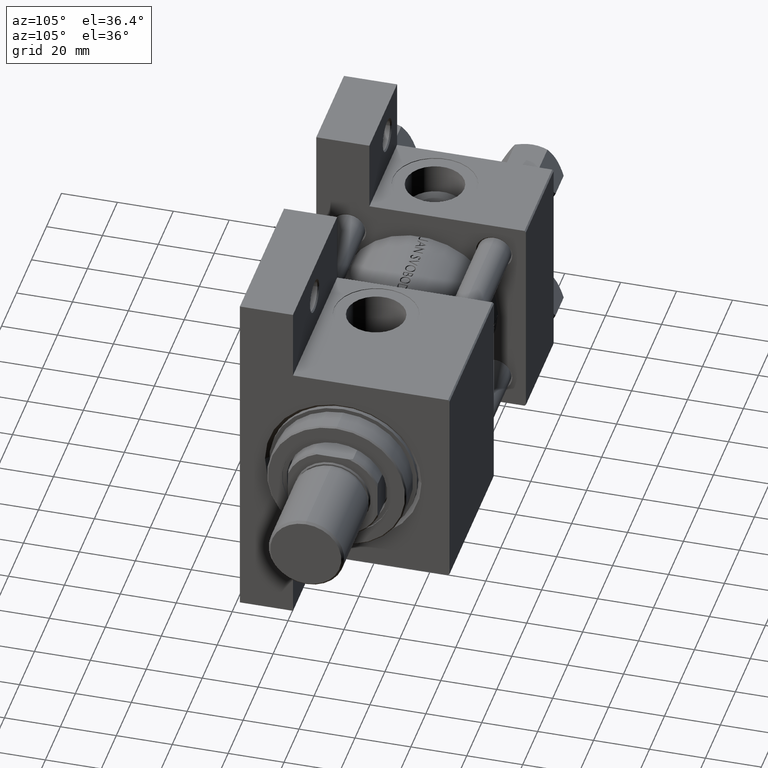
[diagram: clean part render]
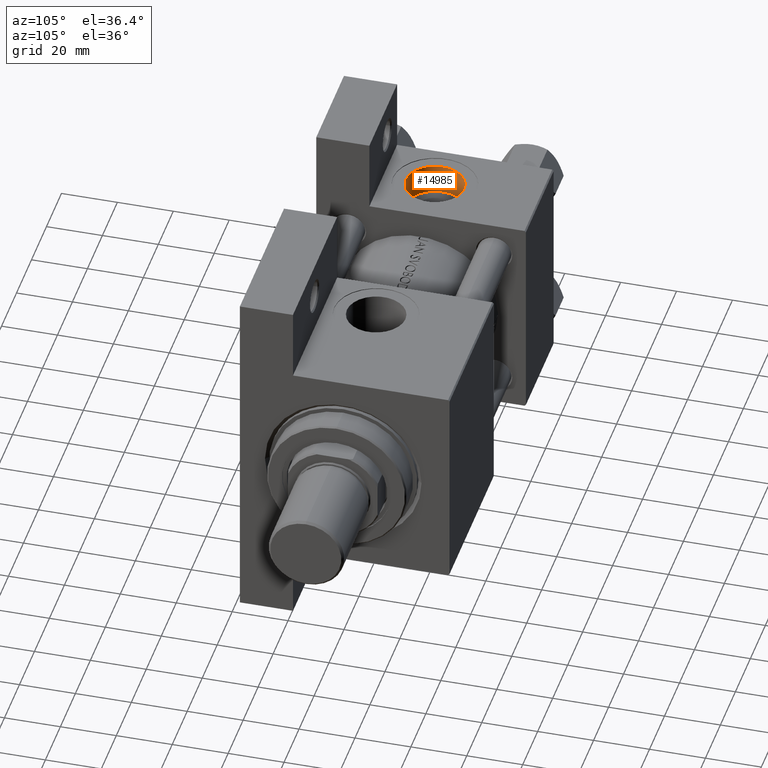
[diagram: same view with one face highlighted and labeled with its STEP entity id]
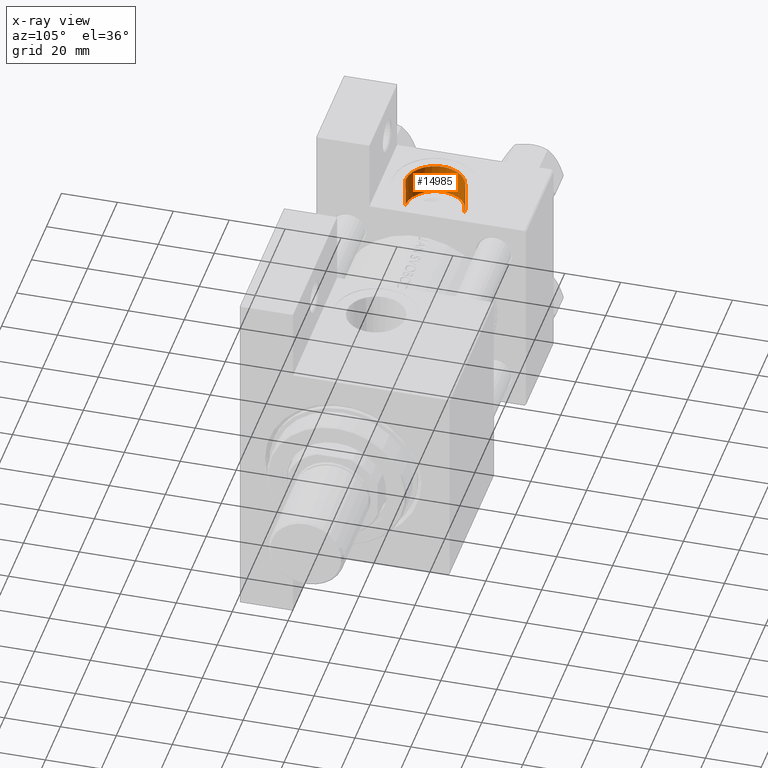
[diagram: x-ray of the same camera — body ghosted, the highlighted face saturated]
A machine part, auxiliary view. The second image highlights one B-rep face of the part: STEP entity #14985.
The next image is the same camera in x-ray: the body ghosted, the highlighted face saturated — about 0% of this face is hidden behind the body in this view.
In plain terms, the highlighted cylindrical surface (edge-blend (fillet) strip) has radius 10.48 mm, axis along (-0, -0, 1).
Its self-contained STEP definition (entity closure, byte-faithful):
#372 = CIRCLE ( 'NONE', #24974, 10.48000000000000043 ) ;
#1241 = AXIS2_PLACEMENT_3D ( 'NONE', #20356, #35498, #8932 ) ;
#1967 = ORIENTED_EDGE ( 'NONE', *, *, #12566, .F. ) ;
#3896 = LINE ( 'NONE', #41162, #36740 ) ;
#5458 = CYLINDRICAL_SURFACE ( 'NONE', #1241, 10.48000000000000043 ) ;
#7702 = ORIENTED_EDGE ( 'NONE', *, *, #30194, .T. ) ;
#7789 = DIRECTION ( 'NONE',  ( 0.000000000000000000, -1.000000000000000000, -8.673617379884036705E-17 ) ) ;
#8932 = DIRECTION ( 'NONE',  ( 0.000000000000000000, 0.000000000000000000, -1.000000000000000000 ) ) ;
#10392 = EDGE_CURVE ( 'NONE', #30391, #22431, #3896, .T. ) ;
#10862 = DIRECTION ( 'NONE',  ( -0.000000000000000000, -1.000000000000000000, -8.673617379884036705E-17 ) ) ;
#12566 = EDGE_CURVE ( 'NONE', #25891, #31517, #23258, .T. ) ;
#13480 = ORIENTED_EDGE ( 'NONE', *, *, #10392, .T. ) ;
#13818 = DIRECTION ( 'NONE',  ( 0.000000000000000000, 0.000000000000000000, -1.000000000000000000 ) ) ;
#14985 = ADVANCED_FACE ( 'NONE', ( #35998 ), #5458, .F. ) ;
#19045 = DIRECTION ( 'NONE',  ( -0.000000000000000000, -1.000000000000000000, -8.673617379884036705E-17 ) ) ;
#20276 = DIRECTION ( 'NONE',  ( 0.000000000000000000, -1.000000000000000000, -8.673617379884036705E-17 ) ) ;
#20356 = CARTESIAN_POINT ( 'NONE',  ( 18.50000000000000000, -26.60000000000000497, -2.524022657546255111E-15 ) ) ;
#21213 = AXIS2_PLACEMENT_3D ( 'NONE', #47865, #20276, #13818 ) ;
#22316 = CARTESIAN_POINT ( 'NONE',  ( 18.50000000000000000, -37.30000000000000426, 10.47999999999999687 ) ) ;
#22431 = VERTEX_POINT ( 'NONE', #22316 ) ;
#23258 = LINE ( 'NONE', #30227, #32925 ) ;
#23468 = CARTESIAN_POINT ( 'NONE',  ( 18.50000000000000000, -26.60000000000000497, 10.47999999999999865 ) ) ;
#23951 = EDGE_CURVE ( 'NONE', #30391, #25891, #372, .T. ) ;
#24974 = AXIS2_PLACEMENT_3D ( 'NONE', #26166, #7789, #33882 ) ;
#25891 = VERTEX_POINT ( 'NONE', #30882 ) ;
#26166 = CARTESIAN_POINT ( 'NONE',  ( 18.50000000000000000, -26.60000000000000497, -2.524022657546255111E-15 ) ) ;
#28721 = EDGE_LOOP ( 'NONE', ( #42840, #13480, #7702, #1967 ) ) ;
#30194 = EDGE_CURVE ( 'NONE', #22431, #31517, #36280, .T. ) ;
#30227 = CARTESIAN_POINT ( 'NONE',  ( 18.50000000000000000, -26.60000000000000497, -10.48000000000000220 ) ) ;
#30391 = VERTEX_POINT ( 'NONE', #23468 ) ;
#30882 = CARTESIAN_POINT ( 'NONE',  ( 18.50000000000000000, -26.60000000000000497, -10.48000000000000220 ) ) ;
#31517 = VERTEX_POINT ( 'NONE', #35803 ) ;
#32925 = VECTOR ( 'NONE', #10862, 1000.000000000000000 ) ;
#33882 = DIRECTION ( 'NONE',  ( 0.000000000000000000, 0.000000000000000000, -1.000000000000000000 ) ) ;
#35498 = DIRECTION ( 'NONE',  ( -0.000000000000000000, -1.000000000000000000, -8.673617379884036705E-17 ) ) ;
#35803 = CARTESIAN_POINT ( 'NONE',  ( 18.50000000000000000, -37.30000000000000426, -10.48000000000000398 ) ) ;
#35998 = FACE_OUTER_BOUND ( 'NONE', #28721, .T. ) ;
#36280 = CIRCLE ( 'NONE', #21213, 10.48000000000000043 ) ;
#36740 = VECTOR ( 'NONE', #19045, 1000.000000000000000 ) ;
#41162 = CARTESIAN_POINT ( 'NONE',  ( 18.50000000000000000, -26.60000000000000497, 10.47999999999999865 ) ) ;
#42840 = ORIENTED_EDGE ( 'NONE', *, *, #23951, .F. ) ;
#47865 = CARTESIAN_POINT ( 'NONE',  ( 18.50000000000000000, -37.30000000000000426, -3.452099717193846907E-15 ) ) ;